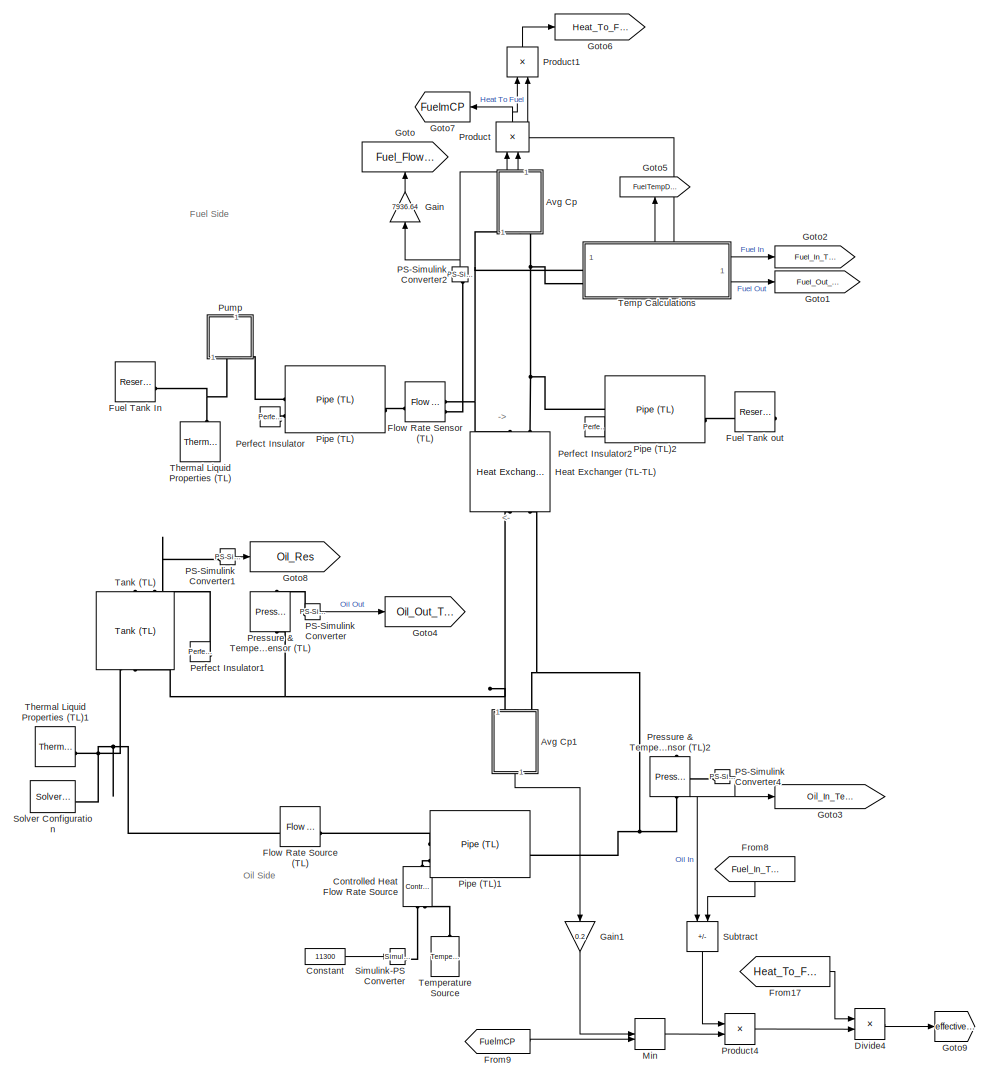
[diagram: root canvas - part 1/2, left side, full height]
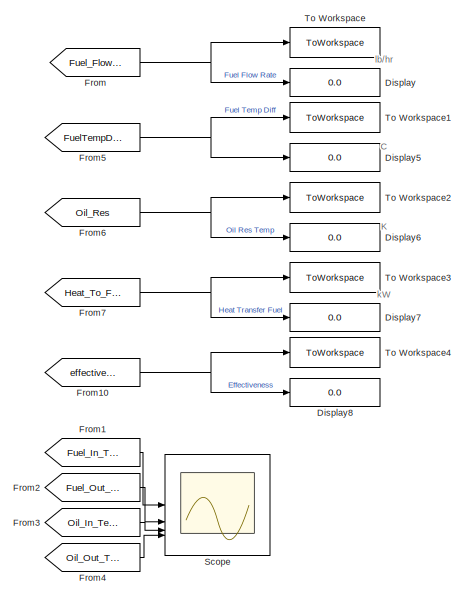
[diagram: root canvas - part 2/2, middle right region]
MODEL slx_a627c17a3434
KIND model
CONFIG AbsTol = auto
CONFIG EnableMultiTasking = off
CONFIG FixedStep = auto
CONFIG MaxStep = auto
CONFIG MinStep = auto
CONFIG RelTol = 1e-3
CONFIG SampleTimeConstraint = Unconstrained
CONFIG SolverName = VariableStepAuto
CONFIG StartTime = 0.0
CONFIG StopTime = 10800
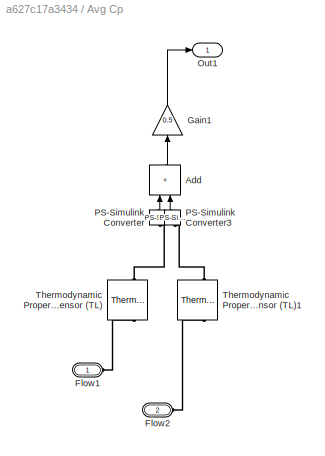
BLOCK [SubSystem] Avg Cp
  NameLocation = right
BLOCK [Sum] Avg Cp/Add
  IconShape = rectangular
  NameLocation = right
BLOCK [PMIOPort] Avg Cp/Flow1
  Side = Left
BLOCK [PMIOPort] Avg Cp/Flow2
  Port = 2
  Side = Left
BLOCK [Gain] Avg Cp/Gain1
  Gain = 0.5
  NameLocation = right
BLOCK [Outport] Avg Cp/Out1
BLOCK [Reference] Avg Cp/PS-Simulink Converter  REF=nesl_utility/PS-Simulink
Converter
  NameLocation = right
  SourceBlock = nesl_utility/PS-Simulink\nConverter
  SourceType = PS-Simulink\nConverter
BLOCK [Reference] Avg Cp/PS-Simulink Converter3  REF=nesl_utility/PS-Simulink
Converter
  NameLocation = right
  SourceBlock = nesl_utility/PS-Simulink\nConverter
  SourceType = PS-Simulink\nConverter
BLOCK [Reference] Avg Cp/Thermodynamic Properties Sensor (TL)  REF=fl_lib/Thermal Liquid/Sensors/Thermodynamic
Properties Sensor
(TL)
  NameLocation = right
  SourceBlock = fl_lib/Thermal Liquid/Sensors/Thermodynamic\nProperties Sensor\n(TL)
  SourceType = Thermodynamic\nProperties Sensor\n(TL)
BLOCK [Reference] Avg Cp/Thermodynamic Properties Sensor (TL)1  REF=fl_lib/Thermal Liquid/Sensors/Thermodynamic
Properties Sensor
(TL)
  NameLocation = right
  SourceBlock = fl_lib/Thermal Liquid/Sensors/Thermodynamic\nProperties Sensor\n(TL)
  SourceType = Thermodynamic\nProperties Sensor\n(TL)
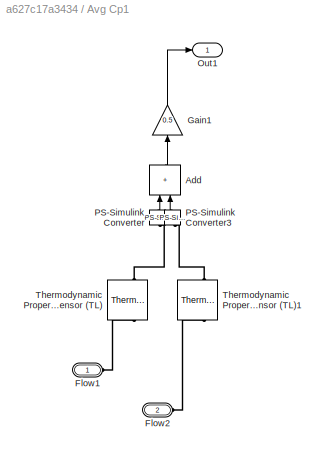
BLOCK [SubSystem] Avg Cp1
  NameLocation = left
BLOCK [Sum] Avg Cp1/Add
  IconShape = rectangular
  NameLocation = right
BLOCK [PMIOPort] Avg Cp1/Flow1
  Side = Left
BLOCK [PMIOPort] Avg Cp1/Flow2
  Port = 2
  Side = Left
BLOCK [Gain] Avg Cp1/Gain1
  Gain = 0.5
  NameLocation = right
BLOCK [Outport] Avg Cp1/Out1
BLOCK [Reference] Avg Cp1/PS-Simulink Converter  REF=nesl_utility/PS-Simulink
Converter
  NameLocation = right
  SourceBlock = nesl_utility/PS-Simulink\nConverter
  SourceType = PS-Simulink\nConverter
BLOCK [Reference] Avg Cp1/PS-Simulink Converter3  REF=nesl_utility/PS-Simulink
Converter
  NameLocation = right
  SourceBlock = nesl_utility/PS-Simulink\nConverter
  SourceType = PS-Simulink\nConverter
BLOCK [Reference] Avg Cp1/Thermodynamic Properties Sensor (TL)  REF=fl_lib/Thermal Liquid/Sensors/Thermodynamic
Properties Sensor
(TL)
  NameLocation = right
  SourceBlock = fl_lib/Thermal Liquid/Sensors/Thermodynamic\nProperties Sensor\n(TL)
  SourceType = Thermodynamic\nProperties Sensor\n(TL)
BLOCK [Reference] Avg Cp1/Thermodynamic Properties Sensor (TL)1  REF=fl_lib/Thermal Liquid/Sensors/Thermodynamic
Properties Sensor
(TL)
  NameLocation = right
  SourceBlock = fl_lib/Thermal Liquid/Sensors/Thermodynamic\nProperties Sensor\n(TL)
  SourceType = Thermodynamic\nProperties Sensor\n(TL)
BLOCK [Constant] Constant
  Value = 11300
BLOCK [Reference] Controlled Heat Flow Rate Source  REF=fl_lib/Thermal/Thermal Sources/Controlled Heat Flow
Rate Source
  NameLocation = right
  SourceBlock = fl_lib/Thermal/Thermal Sources/Controlled Heat Flow\nRate Source
  SourceType = Controlled Heat Flow\nRate Source
BLOCK [Display] Display
  Decimation = 1
BLOCK [Display] Display5
  Decimation = 1
BLOCK [Display] Display6
  Decimation = 1
BLOCK [Display] Display7
  Decimation = 1
BLOCK [Display] Display8
  Decimation = 1
BLOCK [Product] Divide4
  Inputs = */
BLOCK [Reference] Flow Rate Sensor (TL)  REF=fl_lib/Thermal Liquid/Sensors/Flow Rate Sensor
(TL)
  SourceBlock = fl_lib/Thermal Liquid/Sensors/Flow Rate Sensor\n(TL)
  SourceType = Flow Rate Sensor\n(TL)
BLOCK [Reference] Flow Rate Source (TL)  REF=fl_lib/Thermal Liquid/Sources/Flow Rate Source
(TL)
  SourceBlock = fl_lib/Thermal Liquid/Sources/Flow Rate Source\n(TL)
  SourceType = Flow Rate Source\n(TL)
BLOCK [From] From
  GotoTag = Fuel_Flow_Rate
BLOCK [From] From1
  GotoTag = Fuel_In_Temp
  IconDisplay = Signal name
BLOCK [From] From10
  GotoTag = effectiveness
BLOCK [From] From17
  GotoTag = Heat_To_Fuel
BLOCK [From] From2
  GotoTag = Fuel_Out_Temp
  IconDisplay = Signal name
BLOCK [From] From3
  GotoTag = Oil_In_Temp
  IconDisplay = Signal name
BLOCK [From] From4
  GotoTag = Oil_Out_Temp
  IconDisplay = Signal name
BLOCK [From] From5
  GotoTag = FuelTempDiff
  IconDisplay = Signal name
BLOCK [From] From6
  GotoTag = Oil_Res
BLOCK [From] From7
  GotoTag = Heat_To_Fuel
BLOCK [From] From8
  GotoTag = Fuel_In_Temp
  NameLocation = left
BLOCK [From] From9
  GotoTag = FuelmCP
BLOCK [Reference] Fuel Tank In  REF=fl_lib/Thermal Liquid/Elements/Reservoir (TL)
  SourceBlock = fl_lib/Thermal Liquid/Elements/Reservoir (TL)
  SourceType = Reservoir (TL)
BLOCK [Reference] Fuel Tank out  REF=fl_lib/Thermal Liquid/Elements/Reservoir (TL)
  NameLocation = top
  SourceBlock = fl_lib/Thermal Liquid/Elements/Reservoir (TL)
  SourceType = Reservoir (TL)
BLOCK [Gain] Gain
  Gain = 7936.64
  NameLocation = right
BLOCK [Gain] Gain1
  Gain = 0.2
  NameLocation = left
BLOCK [Goto] Goto
  GotoTag = Fuel_Flow_Rate
  NameLocation = right
BLOCK [Goto] Goto1
  GotoTag = Fuel_Out_Temp
BLOCK [Goto] Goto2
  GotoTag = Fuel_In_Temp
BLOCK [Goto] Goto3
  GotoTag = Oil_In_Temp
BLOCK [Goto] Goto4
  GotoTag = Oil_Out_Temp
BLOCK [Goto] Goto5
  GotoTag = FuelTempDiff
  NameLocation = right
BLOCK [Goto] Goto6
  GotoTag = Heat_To_Fuel
BLOCK [Goto] Goto7
  GotoTag = FuelmCP
  NameLocation = top
BLOCK [Goto] Goto8
  GotoTag = Oil_Res
BLOCK [Goto] Goto9
  GotoTag = effectiveness
BLOCK [Reference] Heat Exchanger (TL-TL)  REF=SimscapeFluids_lib/Heat Exchangers/Thermal Liquid/Heat Exchanger
(TL-TL)
  NameLocation = right
  SourceBlock = SimscapeFluids_lib/Heat Exchangers/Thermal Liquid/Heat Exchanger\n(TL-TL)
  SourceType = Heat Exchanger\n(TL-TL)
BLOCK [MinMax] Min
  Inputs = 2
BLOCK [Reference] PS-Simulink Converter  REF=nesl_utility/PS-Simulink
Converter
  SourceBlock = nesl_utility/PS-Simulink\nConverter
  SourceType = PS-Simulink\nConverter
BLOCK [Reference] PS-Simulink Converter1  REF=nesl_utility/PS-Simulink
Converter
  SourceBlock = nesl_utility/PS-Simulink\nConverter
  SourceType = PS-Simulink\nConverter
BLOCK [Reference] PS-Simulink Converter2  REF=nesl_utility/PS-Simulink
Converter
  NameLocation = right
  SourceBlock = nesl_utility/PS-Simulink\nConverter
  SourceType = PS-Simulink\nConverter
BLOCK [Reference] PS-Simulink Converter4  REF=nesl_utility/PS-Simulink
Converter
  SourceBlock = nesl_utility/PS-Simulink\nConverter
  SourceType = PS-Simulink\nConverter
BLOCK [Reference] Perfect Insulator  REF=fl_lib/Thermal/Thermal Elements/Perfect Insulator
  SourceBlock = fl_lib/Thermal/Thermal Elements/Perfect Insulator
  SourceType = Perfect Insulator
BLOCK [Reference] Perfect Insulator1  REF=fl_lib/Thermal/Thermal Elements/Perfect Insulator
  NameLocation = top
  SourceBlock = fl_lib/Thermal/Thermal Elements/Perfect Insulator
  SourceType = Perfect Insulator
BLOCK [Reference] Perfect Insulator2  REF=fl_lib/Thermal/Thermal Elements/Perfect Insulator
  SourceBlock = fl_lib/Thermal/Thermal Elements/Perfect Insulator
  SourceType = Perfect Insulator
BLOCK [Reference] Pipe (TL)  REF=SimscapeFluids_lib/Thermal Liquid/Pipes & Fittings/Pipe (TL)
  SourceBlock = SimscapeFluids_lib/Thermal Liquid/Pipes & Fittings/Pipe (TL)
  SourceType = Pipe (TL)
BLOCK [Reference] Pipe (TL)1  REF=SimscapeFluids_lib/Thermal Liquid/Pipes & Fittings/Pipe (TL)
  SourceBlock = SimscapeFluids_lib/Thermal Liquid/Pipes & Fittings/Pipe (TL)
  SourceType = Pipe (TL)
BLOCK [Reference] Pipe (TL)2  REF=SimscapeFluids_lib/Thermal Liquid/Pipes & Fittings/Pipe (TL)
  SourceBlock = SimscapeFluids_lib/Thermal Liquid/Pipes & Fittings/Pipe (TL)
  SourceType = Pipe (TL)
BLOCK [Reference] Pressure & Temperature Sensor (TL)  REF=fl_lib/Thermal Liquid/Sensors/Pressure &
Temperature Sensor
(TL)
  NameLocation = right
  SourceBlock = fl_lib/Thermal Liquid/Sensors/Pressure &\nTemperature Sensor\n(TL)
  SourceType = Pressure &\nTemperature Sensor\n(TL)
BLOCK [Reference] Pressure & Temperature Sensor (TL)2  REF=fl_lib/Thermal Liquid/Sensors/Pressure &
Temperature Sensor
(TL)
  NameLocation = right
  SourceBlock = fl_lib/Thermal Liquid/Sensors/Pressure &\nTemperature Sensor\n(TL)
  SourceType = Pressure &\nTemperature Sensor\n(TL)
BLOCK [Product] Product
  NameLocation = right
BLOCK [Product] Product1
  NameLocation = right
BLOCK [Product] Product4
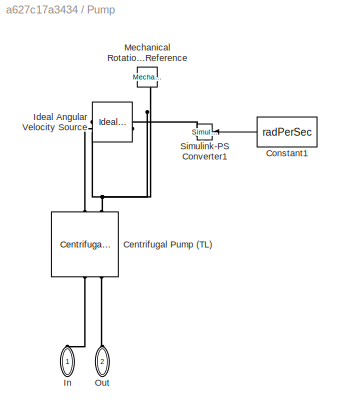
BLOCK [SubSystem] Pump
  NameLocation = left
BLOCK [Reference] Pump/Centrifugal Pump (TL)  REF=SimscapeFluids_lib/Thermal Liquid/Pumps & Motors/Centrifugal Pump
(TL)
  NameLocation = right
  SourceBlock = SimscapeFluids_lib/Thermal Liquid/Pumps & Motors/Centrifugal Pump\n(TL)
  SourceType = Centrifugal Pump\n(TL)
BLOCK [Constant] Pump/Constant1
  NameLocation = top
  Value = radPerSec
BLOCK [Reference] Pump/Ideal Angular Velocity Source  REF=fl_lib/Mechanical/Mechanical Sources/Ideal Angular
Velocity Source
  NameLocation = top
  SourceBlock = fl_lib/Mechanical/Mechanical Sources/Ideal Angular\nVelocity Source
  SourceType = Ideal Angular\nVelocity Source
BLOCK [PMIOPort] Pump/In
  NameLocation = left
  Side = Left
BLOCK [Reference] Pump/Mechanical Rotational Reference  REF=fl_lib/Mechanical/Rotational Elements/Mechanical
Rotational Reference
  NameLocation = left
  SourceBlock = fl_lib/Mechanical/Rotational Elements/Mechanical\nRotational Reference
  SourceType = Mechanical\nRotational Reference
BLOCK [PMIOPort] Pump/Out
  NameLocation = right
  Port = 2
  Side = Left
BLOCK [Reference] Pump/Simulink-PS Converter1  REF=nesl_utility/Simulink-PS
Converter
  NameLocation = top
  SourceBlock = nesl_utility/Simulink-PS\nConverter
  SourceType = Simulink-PS\nConverter
BLOCK [Scope] Scope
  ActiveDisplayYMaximum = 436.45099289922462
  ActiveDisplayYMinimum = 276.47536023864518
  ContainerLayout = {"WindowBounds":[906,2111,321,0]}
  Floating = off
  GraphicalSettings = {"Style":{"BackgroundColor":[0.12941176470588237,0.12941176470588237,0.12941176470588237],"AxesColor":[0.07058823529411765,0.07058823529411765,0.07058823529411765],"LabelsColor":[0.8509803921568627,0.8509803921568627,0.8509803921568627],"PreserveColors":false,"Visible":[true,true,true,true],"LineStyle":["-","-","-","-"],"LineWidth":[1.5,1.5,1.5,1.5],"BarWidth":[0.9,0.9,0.9,0.9],"LineColor":["auto"...<+2384ch>
  MultipleDisplayCache = [{"MaxYLimMag":412.59683824902504,"MaxYLimReal":436.45099289922462,"MinYLimMag":279.87812908344148,"MinYLimReal":276.47536023864518,"PlotAsMagnitudePhase":false,"ShowGrid":true,"ShowLegend":true,"Title":"%<SignalLabel>","YLabel":""}]
  NumInputPorts = 4
  ScopeFrameLocation = window
  ShowLegend = on
  Visible = on
  WasSavedAsWebScope = on
  WindowPosition = [9.000000,57.000000,1520.000000,777.000000,]
BLOCK [Reference] Simulink-PS Converter  REF=nesl_utility/Simulink-PS
Converter
  SourceBlock = nesl_utility/Simulink-PS\nConverter
  SourceType = Simulink-PS\nConverter
BLOCK [Reference] Solver Configuration  REF=nesl_utility/Solver
Configuration
  SourceBlock = nesl_utility/Solver\nConfiguration
  SourceType = Solver\nConfiguration
BLOCK [Sum] Subtract
  IconShape = rectangular
  Inputs = +-
  NameLocation = left
BLOCK [Reference] Tank (TL)  REF=SimscapeFluids_lib/Thermal Liquid/Tanks & Accumulators/Tank (TL)
  NameLocation = right
  SourceBlock = SimscapeFluids_lib/Thermal Liquid/Tanks & Accumulators/Tank (TL)
  SourceType = Tank (TL)
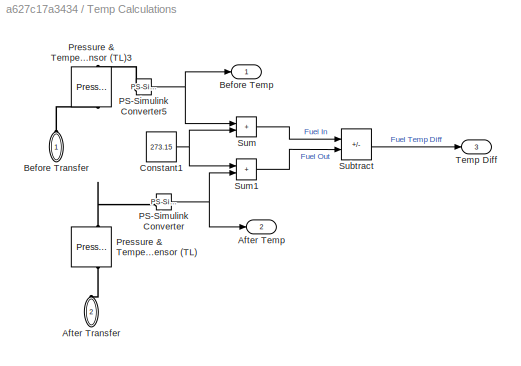
BLOCK [SubSystem] Temp Calculations
  PortSchema = {"entries":[{"content":{"sides":[{"content":{"connectorIds":["LConn1","LConn2"]},"type":"ConnectorPlacement.EquallySpacedRectSide","uuid":"d2ad7cc9-a4b2-44f6-9213-a66d3b8256a8"},{"content":{"connectorIds":["Out1","Out2"],"side":"RIGHT"},"type":"ConnectorPlacement.EquallySpacedRectSide","uuid":"99b1058c-0f38-4062-ae5d-9686467d925e"},{"content":{"connectorIds":["Out3"],"side":"TOP"},"type":"Connecto...<+391ch>
BLOCK [Outport] Temp Calculations/After Temp
  Port = 2
BLOCK [PMIOPort] Temp Calculations/After Transfer
  NameLocation = right
  Port = 2
  Side = Left
BLOCK [Outport] Temp Calculations/Before Temp
BLOCK [PMIOPort] Temp Calculations/Before Transfer
  NameLocation = right
  Side = Left
BLOCK [Constant] Temp Calculations/Constant1
  Value = 273.15
BLOCK [Reference] Temp Calculations/PS-Simulink Converter  REF=nesl_utility/PS-Simulink
Converter
  SourceBlock = nesl_utility/PS-Simulink\nConverter
  SourceType = PS-Simulink\nConverter
BLOCK [Reference] Temp Calculations/PS-Simulink Converter5  REF=nesl_utility/PS-Simulink
Converter
  SourceBlock = nesl_utility/PS-Simulink\nConverter
  SourceType = PS-Simulink\nConverter
BLOCK [Reference] Temp Calculations/Pressure & Temperature Sensor (TL)  REF=fl_lib/Thermal Liquid/Sensors/Pressure &
Temperature Sensor
(TL)
  NameLocation = right
  SourceBlock = fl_lib/Thermal Liquid/Sensors/Pressure &\nTemperature Sensor\n(TL)
  SourceType = Pressure &\nTemperature Sensor\n(TL)
BLOCK [Reference] Temp Calculations/Pressure & Temperature Sensor (TL)3  REF=fl_lib/Thermal Liquid/Sensors/Pressure &
Temperature Sensor
(TL)
  NameLocation = right
  SourceBlock = fl_lib/Thermal Liquid/Sensors/Pressure &\nTemperature Sensor\n(TL)
  SourceType = Pressure &\nTemperature Sensor\n(TL)
BLOCK [Sum] Temp Calculations/Subtract
  IconShape = rectangular
  Inputs = -+
BLOCK [Sum] Temp Calculations/Sum
  IconShape = rectangular
  NameLocation = top
BLOCK [Sum] Temp Calculations/Sum1
  IconShape = rectangular
  Inputs = +||+
BLOCK [Outport] Temp Calculations/Temp Diff
  Port = 3
BLOCK [Reference] Temperature Source  REF=fl_lib/Thermal/Thermal Sources/Temperature Source
  NameLocation = right
  SourceBlock = fl_lib/Thermal/Thermal Sources/Temperature Source
  SourceType = Temperature Source
BLOCK [Reference] Thermal Liquid Properties (TL)  REF=SimscapeFluids_lib/Thermal Liquid/Utilities/Thermal Liquid
Properties (TL)
  NameLocation = right
  SourceBlock = SimscapeFluids_lib/Thermal Liquid/Utilities/Thermal Liquid\nProperties (TL)
  SourceType = Thermal Liquid\nProperties (TL)
BLOCK [Reference] Thermal Liquid Properties (TL)1  REF=SimscapeFluids_lib/Thermal Liquid/Utilities/Thermal Liquid
Properties (TL)
  SourceBlock = SimscapeFluids_lib/Thermal Liquid/Utilities/Thermal Liquid\nProperties (TL)
  SourceType = Thermal Liquid\nProperties (TL)
BLOCK [ToWorkspace] To Workspace
  FixptAsFi = on
  MaxDataPoints = inf
  SampleTime = -1
  SaveFormat = Timeseries
  VariableName = fuelFlowRate
BLOCK [ToWorkspace] To Workspace1
  FixptAsFi = on
  MaxDataPoints = inf
  SampleTime = -1
  SaveFormat = Timeseries
  VariableName = fuelTempDiff
BLOCK [ToWorkspace] To Workspace2
  FixptAsFi = on
  MaxDataPoints = inf
  SampleTime = -1
  SaveFormat = Timeseries
  VariableName = oilResTemp
BLOCK [ToWorkspace] To Workspace3
  FixptAsFi = on
  MaxDataPoints = inf
  SampleTime = -1
  SaveFormat = Timeseries
  VariableName = heatToFuel
BLOCK [ToWorkspace] To Workspace4
  FixptAsFi = on
  MaxDataPoints = inf
  SampleTime = -1
  SaveFormat = Timeseries
  VariableName = effectiveness
ANNOTATION (root): ->
ANNOTATION (root): Fuel Side
ANNOTATION (root): Oil Side
ANNOTATION (root): <-
ANNOTATION (root): C
ANNOTATION (root): K
ANNOTATION (root): kW
ANNOTATION (root): lb/hr
LINE Avg Cp/Add:1 -> Avg Cp/Gain1:1
LINE Avg Cp/Gain1:1 -> Avg Cp/Out1:1
LINE Avg Cp/PS-Simulink Converter3:1 -> Avg Cp/Add:2
LINE Avg Cp/PS-Simulink Converter:1 -> Avg Cp/Add:1
LINE Avg Cp1/Add:1 -> Avg Cp1/Gain1:1
LINE Avg Cp1/Gain1:1 -> Avg Cp1/Out1:1
LINE Avg Cp1/PS-Simulink Converter3:1 -> Avg Cp1/Add:2
LINE Avg Cp1/PS-Simulink Converter:1 -> Avg Cp1/Add:1
LINE Avg Cp1:1 -> Gain1:1
LINE Avg Cp:1 -> Product:2
LINE Constant:1 -> Simulink-PS Converter:1
LINE Divide4:1 -> Goto9:1
NET From10:1 -> Display8:1, To Workspace4:1
LINE From17:1 -> Divide4:1
LINE From1:1 -> Scope:1
LINE From2:1 -> Scope:2
LINE From3:1 -> Scope:3
LINE From4:1 -> Scope:4
NET From5:1 -> Display5:1, To Workspace1:1
NET From6:1 -> Display6:1, To Workspace2:1
NET From7:1 -> Display7:1, To Workspace3:1
LINE From8:1 -> Subtract:2
LINE From9:1 -> Min:2
NET From:1 -> Display:1, To Workspace:1
LINE Gain1:1 -> Min:1
LINE Gain:1 -> Goto:1
LINE Min:1 -> Product4:2
LINE PS-Simulink Converter1:1 -> Goto8:1
NET PS-Simulink Converter2:1 -> Gain:1, Product:1
NET PS-Simulink Converter4:1 -> Goto3:1, Subtract:1
LINE PS-Simulink Converter:1 -> Goto4:1
LINE Product1:1 -> Goto6:1
LINE Product4:1 -> Divide4:2
NET Product:1 -> Goto7:1, Product1:1
LINE Pump/Constant1:1 -> Pump/Simulink-PS Converter1:1
LINE Subtract:1 -> Product4:1
NET Temp Calculations/Constant1:1 -> Temp Calculations/Sum1:1, Temp Calculations/Sum:2
NET Temp Calculations/PS-Simulink Converter5:1 -> Temp Calculations/Before Temp:1, Temp Calculations/Sum:1
NET Temp Calculations/PS-Simulink Converter:1 -> Temp Calculations/After Temp:1, Temp Calculations/Sum1:2
LINE Temp Calculations/Subtract:1 -> Temp Calculations/Temp Diff:1
LINE Temp Calculations/Sum1:1 -> Temp Calculations/Subtract:2
LINE Temp Calculations/Sum:1 -> Temp Calculations/Subtract:1
LINE Temp Calculations:1 -> Goto2:1
LINE Temp Calculations:2 -> Goto1:1
NET Temp Calculations:3 -> Goto5:1, Product1:2
PLINE Avg Cp/Flow1:RConn1 -- Avg Cp/Thermodynamic Properties Sensor (TL):LConn1
PLINE Avg Cp/Flow2:RConn1 -- Avg Cp/Thermodynamic Properties Sensor (TL)1:LConn1
PLINE Avg Cp/PS-Simulink Converter3:LConn1 -- Avg Cp/Thermodynamic Properties Sensor (TL)1:RConn1
PLINE Avg Cp/PS-Simulink Converter:LConn1 -- Avg Cp/Thermodynamic Properties Sensor (TL):RConn1
PLINE Avg Cp1/Flow1:RConn1 -- Avg Cp1/Thermodynamic Properties Sensor (TL):LConn1
PLINE Avg Cp1/Flow2:RConn1 -- Avg Cp1/Thermodynamic Properties Sensor (TL)1:LConn1
PLINE Avg Cp1/PS-Simulink Converter3:LConn1 -- Avg Cp1/Thermodynamic Properties Sensor (TL)1:RConn1
PLINE Avg Cp1/PS-Simulink Converter:LConn1 -- Avg Cp1/Thermodynamic Properties Sensor (TL):RConn1
PNET net1: Avg Cp1:LConn1 -- Heat Exchanger (TL-TL):LConn1 -- Pressure & Temperature Sensor (TL):LConn1 -- Tank (TL):LConn2
PNET net2: Avg Cp1:LConn2 -- Heat Exchanger (TL-TL):LConn2 -- Pipe (TL)1:RConn1 -- Pressure & Temperature Sensor (TL)2:LConn1
PNET net3: Avg Cp:LConn1 -- Flow Rate Sensor (TL):RConn1 -- Heat Exchanger (TL-TL):RConn1 -- Temp Calculations:LConn1
PNET net4: Avg Cp:LConn2 -- Heat Exchanger (TL-TL):RConn2 -- Pipe (TL)2:LConn1 -- Temp Calculations:LConn2
PLINE Controlled Heat Flow Rate Source:LConn1 -- Pipe (TL)1:LConn2
PLINE Controlled Heat Flow Rate Source:RConn1 -- Simulink-PS Converter:RConn1
PLINE Controlled Heat Flow Rate Source:RConn2 -- Temperature Source:LConn1
PLINE Flow Rate Sensor (TL):LConn1 -- Pipe (TL):RConn1
PLINE Flow Rate Sensor (TL):RConn2 -- PS-Simulink Converter2:LConn1
PNET net5: Flow Rate Source (TL):LConn1 -- Solver Configuration:RConn1 -- Tank (TL):LConn1 -- Thermal Liquid Properties (TL)1:RConn1
PLINE Flow Rate Source (TL):RConn1 -- Pipe (TL)1:LConn1
PNET net6: Fuel Tank In:LConn1 -- Pump:LConn1 -- Thermal Liquid Properties (TL):RConn1
PLINE Fuel Tank out:LConn1 -- Pipe (TL)2:RConn1
PLINE PS-Simulink Converter1:LConn1 -- Tank (TL):RConn2
PLINE PS-Simulink Converter4:LConn1 -- Pressure & Temperature Sensor (TL)2:RConn1
PLINE PS-Simulink Converter:LConn1 -- Pressure & Temperature Sensor (TL):RConn1
PLINE Perfect Insulator1:LConn1 -- Tank (TL):RConn1
PLINE Perfect Insulator2:LConn1 -- Pipe (TL)2:LConn2
PLINE Perfect Insulator:LConn1 -- Pipe (TL):LConn2
PLINE Pipe (TL):LConn1 -- Pump:LConn2
PLINE Pump/Centrifugal Pump (TL):LConn1 -- Pump/In:RConn1
PLINE Pump/Centrifugal Pump (TL):LConn2 -- Pump/Out:RConn1
PLINE Pump/Centrifugal Pump (TL):RConn1 -- Pump/Ideal Angular Velocity Source:LConn1
PNET net7: Pump/Centrifugal Pump (TL):RConn2 -- Pump/Ideal Angular Velocity Source:RConn2 -- Pump/Mechanical Rotational Reference:LConn1
PLINE Pump/Ideal Angular Velocity Source:RConn1 -- Pump/Simulink-PS Converter1:RConn1
PLINE Temp Calculations/After Transfer:RConn1 -- Temp Calculations/Pressure & Temperature Sensor (TL):LConn1
PLINE Temp Calculations/Before Transfer:RConn1 -- Temp Calculations/Pressure & Temperature Sensor (TL)3:LConn1
PLINE Temp Calculations/PS-Simulink Converter5:LConn1 -- Temp Calculations/Pressure & Temperature Sensor (TL)3:RConn1
PLINE Temp Calculations/PS-Simulink Converter:LConn1 -- Temp Calculations/Pressure & Temperature Sensor (TL):RConn1
note: NET lines group one-source signal fan-out (src -> all destinations, sorted); 1:1 wires keep LINE; PNET lines group multi-terminal physical nets as a canonical sorted terminal list (undirected conserving connections); 2-terminal nets keep the pairwise PLINE form
